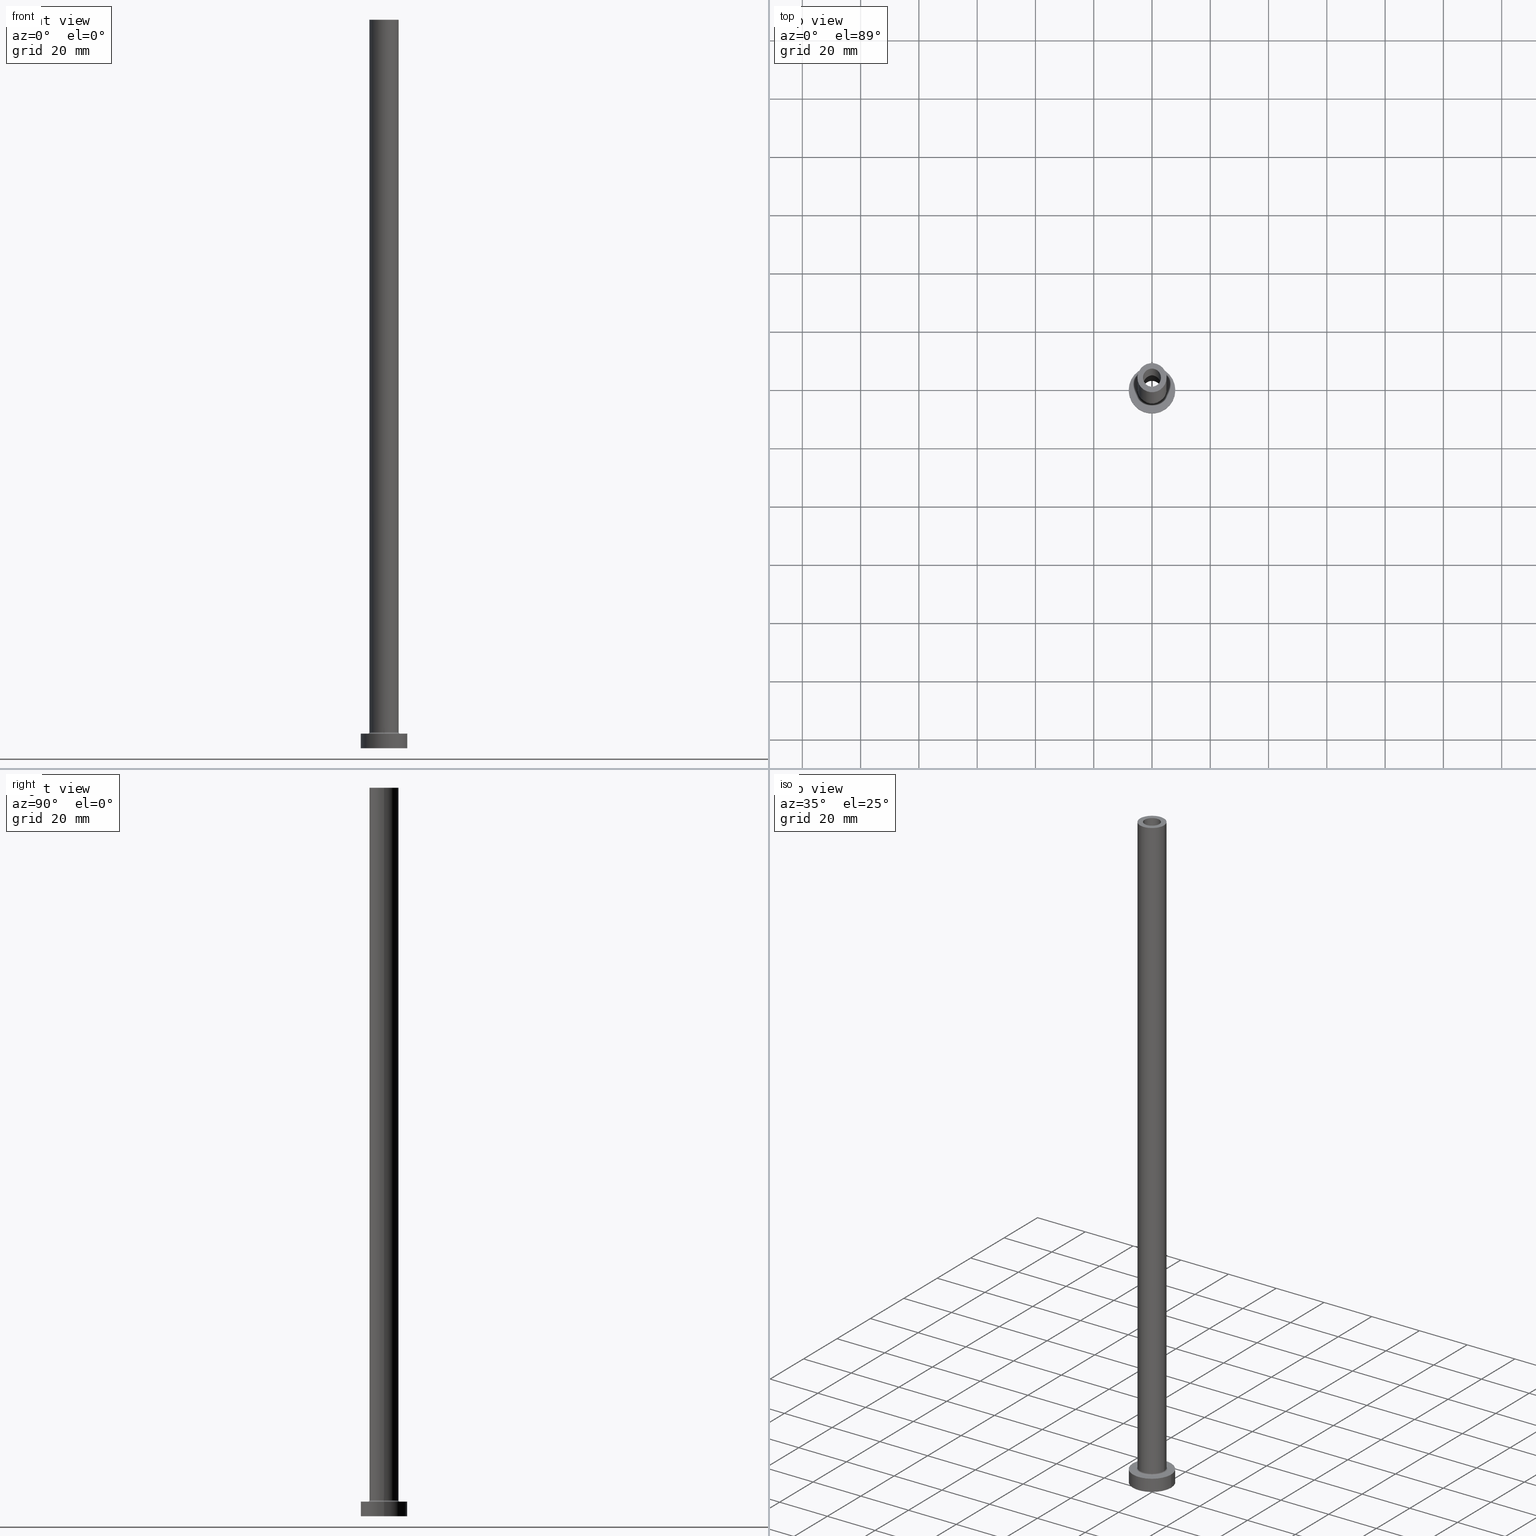
[diagram: canonical four-view strip — front | top / right | iso, engineering-drawing reading convention]
A machine part, canonical four-view strip (front | top / right | iso — engineering-drawing reading convention). The complete STEP part file that produces these views, byte-faithful:
ISO-10303-21;
HEADER;
FILE_DESCRIPTION (( 'STEP AP203' ),
    '1' );
FILE_NAME ('8e76.STEP',
    '2023-02-13T09:11:44',
    ( '' ),
    ( '' ),
    'SwSTEP 2.0',
    'SolidWorks 2019',
    '' );
FILE_SCHEMA (( 'CONFIG_CONTROL_DESIGN' ));
ENDSEC;

DATA;
#1 = ORIENTED_EDGE ( 'NONE', *, *, #379, .T. ) ;
#2 = DIRECTION ( 'NONE',  ( -0.000000000000000000, -0.000000000000000000, -1.000000000000000000 ) ) ;
#3 = ORIENTED_EDGE ( 'NONE', *, *, #379, .F. ) ;
#4 = PERSON_AND_ORGANIZATION ( #59, #201 ) ;
#5 = DIRECTION ( 'NONE',  ( 0.000000000000000000, 0.000000000000000000, 1.000000000000000000 ) ) ;
#6 = EDGE_LOOP ( 'NONE', ( #3, #11, #115, #436 ) ) ;
#7 = CARTESIAN_POINT ( 'NONE',  ( -8.000000000000000000, 0.000000000000000000, 0.000000000000000000 ) ) ;
#8 = DIRECTION ( 'NONE',  ( 1.000000000000000000, 0.000000000000000000, 0.000000000000000000 ) ) ;
#9 = ADVANCED_FACE ( 'NONE', ( #392, #69 ), #26, .T. ) ;
#10 = AXIS2_PLACEMENT_3D ( 'NONE', #29, #331, #294 ) ;
#11 = ORIENTED_EDGE ( 'NONE', *, *, #32, .F. ) ;
#12 = AXIS2_PLACEMENT_3D ( 'NONE', #95, #167, #447 ) ;
#13 = FACE_BOUND ( 'NONE', #308, .T. ) ;
#14 = DIRECTION ( 'NONE',  ( 1.000000000000000000, 0.000000000000000000, -0.000000000000000000 ) ) ;
#15 = CARTESIAN_POINT ( 'NONE',  ( 0.000000000000000000, 0.000000000000000000, 250.0000000000000000 ) ) ;
#16 = COORDINATED_UNIVERSAL_TIME_OFFSET ( 1, 0, .AHEAD. ) ;
#17 = FACE_OUTER_BOUND ( 'NONE', #358, .T. ) ;
#18 = CIRCLE ( 'NONE', #354, 3.250000000000000444 ) ;
#19 = DIRECTION ( 'NONE',  ( 0.000000000000000000, 0.000000000000000000, 1.000000000000000000 ) ) ;
#20 = ORIENTED_EDGE ( 'NONE', *, *, #110, .T. ) ;
#21 = DIRECTION ( 'NONE',  ( 0.000000000000000000, 0.000000000000000000, 1.000000000000000000 ) ) ;
#22 = APPROVAL_ROLE ( '' ) ;
#23 = ADVANCED_FACE ( 'NONE', ( #146 ), #80, .F. ) ;
#24 = AXIS2_PLACEMENT_3D ( 'NONE', #121, #162, #232 ) ;
#25 = CC_DESIGN_DATE_AND_TIME_ASSIGNMENT ( #209, #444, ( #370 ) ) ;
#26 = PLANE ( 'NONE',  #346 ) ;
#27 = ADVANCED_FACE ( 'NONE', ( #403 ), #360, .T. ) ;
#28 = EDGE_CURVE ( 'NONE', #254, #288, #255, .T. ) ;
#29 = CARTESIAN_POINT ( 'NONE',  ( 0.000000000000000000, 0.000000000000000000, 250.0000000000000000 ) ) ;
#30 = ORIENTED_EDGE ( 'NONE', *, *, #238, .T. ) ;
#31 = CARTESIAN_POINT ( 'NONE',  ( -3.100000000000000089, 0.000000000000000000, 250.0000000000000000 ) ) ;
#32 = EDGE_CURVE ( 'NONE', #36, #402, #457, .T. ) ;
#33 = VECTOR ( 'NONE', #300, 1000.000000000000000 ) ;
#34 = CARTESIAN_POINT ( 'NONE',  ( 0.000000000000000000, 0.000000000000000000, 0.000000000000000000 ) ) ;
#35 = AXIS2_PLACEMENT_3D ( 'NONE', #272, #364, #158 ) ;
#36 = VERTEX_POINT ( 'NONE', #432 ) ;
#37 = DIRECTION ( 'NONE',  ( -1.000000000000000000, 0.000000000000000000, 0.000000000000000000 ) ) ;
#38 = EDGE_LOOP ( 'NONE', ( #55, #329 ) ) ;
#39 = CARTESIAN_POINT ( 'NONE',  ( 8.000000000000000000, 9.797174393178825657E-16, 5.000000000000000000 ) ) ;
#40 = PERSON_AND_ORGANIZATION_ROLE ( 'design_owner' ) ;
#41 = CC_DESIGN_PERSON_AND_ORGANIZATION_ASSIGNMENT ( #250, #94, ( #260 ) ) ;
#42 = EDGE_CURVE ( 'NONE', #36, #340, #270, .T. ) ;
#43 = ORIENTED_EDGE ( 'NONE', *, *, #61, .F. ) ;
#44 = PLANE ( 'NONE',  #145 ) ;
#45 = COORDINATED_UNIVERSAL_TIME_OFFSET ( 1, 0, .AHEAD. ) ;
#46 = DIRECTION ( 'NONE',  ( 0.000000000000000000, 0.000000000000000000, -1.000000000000000000 ) ) ;
#47 = AXIS2_PLACEMENT_3D ( 'NONE', #243, #315, #377 ) ;
#48 = ORIENTED_EDGE ( 'NONE', *, *, #267, .T. ) ;
#49 = EDGE_CURVE ( 'NONE', #288, #130, #198, .T. ) ;
#50 = DIRECTION ( 'NONE',  ( 0.000000000000000000, 0.000000000000000000, 1.000000000000000000 ) ) ;
#51 = ORIENTED_EDGE ( 'NONE', *, *, #175, .T. ) ;
#52 = PERSON_AND_ORGANIZATION ( #59, #201 ) ;
#53 = EDGE_CURVE ( 'NONE', #340, #345, #362, .T. ) ;
#54 = CARTESIAN_POINT ( 'NONE',  ( 0.000000000000000000, 0.000000000000000000, 205.0000000000000284 ) ) ;
#55 = ORIENTED_EDGE ( 'NONE', *, *, #175, .F. ) ;
#56 = CARTESIAN_POINT ( 'NONE',  ( 3.100000000000000089, 3.796405077356793932E-16, 205.0000000000000284 ) ) ;
#57 = AXIS2_PLACEMENT_3D ( 'NONE', #83, #5, #77 ) ;
#58 = DIRECTION ( 'NONE',  ( 1.000000000000000000, 0.000000000000000000, 0.000000000000000000 ) ) ;
#59 = PERSON ( 'NEUR�EN�', 'NEUR�EN�', 'NEUR�EN�', ('NEUR�EN�'), ('NEUR�EN�'), ('NEUR�EN�') ) ;
#60 = APPLICATION_CONTEXT ( 'configuration controlled 3d designs of mechanical parts and assemblies' ) ;
#61 = EDGE_CURVE ( 'NONE', #254, #156, #74, .T. ) ;
#62 = PERSON_AND_ORGANIZATION ( #59, #201 ) ;
#63 = EDGE_CURVE ( 'NONE', #160, #189, #18, .T. ) ;
#64 = LINE ( 'NONE', #405, #259 ) ;
#65 = CIRCLE ( 'NONE', #88, 5.500000000000000000 ) ;
#66 = CC_DESIGN_APPROVAL ( #425, ( #290 ) ) ;
#67 = DIRECTION ( 'NONE',  ( 0.000000000000000000, 0.000000000000000000, 1.000000000000000000 ) ) ;
#68 = ADVANCED_FACE ( 'NONE', ( #164 ), #85, .T. ) ;
#69 = FACE_OUTER_BOUND ( 'NONE', #306, .T. ) ;
#70 = ORIENTED_EDGE ( 'NONE', *, *, #357, .T. ) ;
#71 = AXIS2_PLACEMENT_3D ( 'NONE', #169, #50, #349 ) ;
#72 = CARTESIAN_POINT ( 'NONE',  ( -3.100000000000000089, 0.000000000000000000, 205.0000000000000284 ) ) ;
#73 = EDGE_CURVE ( 'NONE', #302, #189, #428, .T. ) ;
#74 = LINE ( 'NONE', #461, #216 ) ;
#75 = ORIENTED_EDGE ( 'NONE', *, *, #421, .F. ) ;
#76 = DIRECTION ( 'NONE',  ( -0.000000000000000000, -0.000000000000000000, -1.000000000000000000 ) ) ;
#77 = DIRECTION ( 'NONE',  ( 1.000000000000000000, 0.000000000000000000, 0.000000000000000000 ) ) ;
#78 = EDGE_LOOP ( 'NONE', ( #383, #431 ) ) ;
#79 = DIRECTION ( 'NONE',  ( -0.000000000000000000, -0.000000000000000000, -1.000000000000000000 ) ) ;
#80 = CYLINDRICAL_SURFACE ( 'NONE', #10, 3.100000000000000089 ) ;
#81 = ORIENTED_EDGE ( 'NONE', *, *, #311, .F. ) ;
#82 = CARTESIAN_POINT ( 'NONE',  ( 0.000000000000000000, 0.000000000000000000, 250.0000000000000000 ) ) ;
#83 = CARTESIAN_POINT ( 'NONE',  ( 0.000000000000000000, 0.000000000000000000, 5.000000000000000000 ) ) ;
#84 = ORIENTED_EDGE ( 'NONE', *, *, #32, .T. ) ;
#85 = CYLINDRICAL_SURFACE ( 'NONE', #284, 8.000000000000000000 ) ;
#86 = ORIENTED_EDGE ( 'NONE', *, *, #251, .T. ) ;
#87 = DIRECTION ( 'NONE',  ( 0.000000000000000000, 0.000000000000000000, -1.000000000000000000 ) ) ;
#88 = AXIS2_PLACEMENT_3D ( 'NONE', #371, #204, #99 ) ;
#89 = APPROVAL_DATE_TIME ( #409, #220 ) ;
#90 = DIRECTION ( 'NONE',  ( 1.000000000000000000, 0.000000000000000000, 0.000000000000000000 ) ) ;
#91 = PERSON_AND_ORGANIZATION_ROLE ( 'classification_officer' ) ;
#92 = EDGE_LOOP ( 'NONE', ( #106, #1, #20, #393 ) ) ;
#93 = DIRECTION ( 'NONE',  ( 1.000000000000000000, 0.000000000000000000, 0.000000000000000000 ) ) ;
#94 = PERSON_AND_ORGANIZATION_ROLE ( 'design_supplier' ) ;
#95 = CARTESIAN_POINT ( 'NONE',  ( 0.000000000000000000, 0.000000000000000000, 5.500000000000005329 ) ) ;
#96 = ORIENTED_EDGE ( 'NONE', *, *, #63, .T. ) ;
#97 = APPROVAL_DATE_TIME ( #391, #287 ) ;
#98 = AXIS2_PLACEMENT_3D ( 'NONE', #54, #279, #14 ) ;
#99 = DIRECTION ( 'NONE',  ( 1.000000000000000000, 0.000000000000000000, 0.000000000000000000 ) ) ;
#100 = EDGE_CURVE ( 'NONE', #262, #160, #114, .T. ) ;
#101 = CARTESIAN_POINT ( 'NONE',  ( 0.000000000000000000, 0.000000000000000000, 205.0000000000000284 ) ) ;
#102 = SHAPE_DEFINITION_REPRESENTATION ( #172, #445 ) ;
#103 = CARTESIAN_POINT ( 'NONE',  ( 0.000000000000000000, 0.000000000000000000, 0.000000000000000000 ) ) ;
#104 = DIRECTION ( 'NONE',  ( 1.000000000000000000, 0.000000000000000000, 0.000000000000000000 ) ) ;
#105 = CIRCLE ( 'NONE', #324, 3.250000000000000444 ) ;
#106 = ORIENTED_EDGE ( 'NONE', *, *, #238, .F. ) ;
#107 = EDGE_LOOP ( 'NONE', ( #226, #422, #426, #203 ) ) ;
#108 = ADVANCED_FACE ( 'NONE', ( #202 ), #339, .F. ) ;
#109 = CIRCLE ( 'NONE', #277, 5.000000000000000000 ) ;
#110 = EDGE_CURVE ( 'NONE', #345, #340, #171, .T. ) ;
#111 = CARTESIAN_POINT ( 'NONE',  ( -3.250000000000000444, 0.000000000000000000, 214.1923881554251352 ) ) ;
#112 = DIRECTION ( 'NONE',  ( 1.000000000000000000, 0.000000000000000000, -0.000000000000000000 ) ) ;
#113 = CALENDAR_DATE ( 2023, 13, 2 ) ;
#114 = LINE ( 'NONE', #366, #184 ) ;
#115 = ORIENTED_EDGE ( 'NONE', *, *, #42, .T. ) ;
#116 = DIRECTION ( 'NONE',  ( 0.000000000000000000, 0.000000000000000000, 1.000000000000000000 ) ) ;
#117 = DIRECTION ( 'NONE',  ( -0.000000000000000000, -0.000000000000000000, -1.000000000000000000 ) ) ;
#118 = ADVANCED_FACE ( 'NONE', ( #155 ), #170, .F. ) ;
#119 = ORIENTED_EDGE ( 'NONE', *, *, #28, .T. ) ;
#120 = FACE_OUTER_BOUND ( 'NONE', #78, .T. ) ;
#121 = CARTESIAN_POINT ( 'NONE',  ( 0.000000000000000000, 0.000000000000000000, 250.0000000000000000 ) ) ;
#122 = VECTOR ( 'NONE', #326, 1000.000000000000000 ) ;
#123 = CARTESIAN_POINT ( 'NONE',  ( 0.000000000000000000, 0.000000000000000000, 250.0000000000000000 ) ) ;
#124 = APPLICATION_PROTOCOL_DEFINITION ( 'international standard', 'config_control_design', 1994, #60 ) ;
#125 = DIRECTION ( 'NONE',  ( -1.000000000000000000, 0.000000000000000000, 0.000000000000000000 ) ) ;
#126 = EDGE_LOOP ( 'NONE', ( #297, #293 ) ) ;
#127 = CARTESIAN_POINT ( 'NONE',  ( 5.500000000000000000, 0.000000000000000000, 5.000000000000002665 ) ) ;
#128 = DIRECTION ( 'NONE',  ( -1.000000000000000000, 1.224646799147351482E-16, 0.000000000000000000 ) ) ;
#129 = EDGE_CURVE ( 'NONE', #288, #254, #285, .T. ) ;
#130 = VERTEX_POINT ( 'NONE', #452 ) ;
#131 = DIRECTION ( 'NONE',  ( 0.000000000000000000, 0.000000000000000000, 1.000000000000000000 ) ) ;
#132 = CIRCLE ( 'NONE', #453, 3.100000000000000089 ) ;
#133 = DATE_AND_TIME ( #312, #381 ) ;
#134 = DIRECTION ( 'NONE',  ( 1.000000000000000000, 0.000000000000000000, 0.000000000000000000 ) ) ;
#135 = EDGE_CURVE ( 'NONE', #189, #160, #105, .T. ) ;
#136 = DIRECTION ( 'NONE',  ( 0.000000000000000000, 0.000000000000000000, 1.000000000000000000 ) ) ;
#137 = EDGE_CURVE ( 'NONE', #292, #281, #390, .T. ) ;
#138 = DIRECTION ( 'NONE',  ( 0.000000000000000000, 0.000000000000000000, -1.000000000000000000 ) ) ;
#139 = CIRCLE ( 'NONE', #394, 8.000000000000000000 ) ;
#140 = AXIS2_PLACEMENT_3D ( 'NONE', #333, #76, #37 ) ;
#141 = APPLICATION_CONTEXT ( 'configuration controlled 3d designs of mechanical parts and assemblies' ) ;
#142 = ORIENTED_EDGE ( 'NONE', *, *, #129, .F. ) ;
#143 = DIRECTION ( 'NONE',  ( 0.000000000000000000, 0.000000000000000000, -1.000000000000000000 ) ) ;
#144 = ORIENTED_EDGE ( 'NONE', *, *, #311, .T. ) ;
#145 = AXIS2_PLACEMENT_3D ( 'NONE', #368, #197, #112 ) ;
#146 = FACE_OUTER_BOUND ( 'NONE', #244, .T. ) ;
#147 = ADVANCED_FACE ( 'NONE', ( #342, #310 ), #450, .F. ) ;
#148 = ORIENTED_EDGE ( 'NONE', *, *, #251, .F. ) ;
#149 = CC_DESIGN_PERSON_AND_ORGANIZATION_ASSIGNMENT ( #415, #177, ( #260 ) ) ;
#150 = DIRECTION ( 'NONE',  ( 0.000000000000000000, 0.000000000000000000, 1.000000000000000000 ) ) ;
#151 = CARTESIAN_POINT ( 'NONE',  ( 3.100000000000000089, 3.796405077356793932E-16, 250.0000000000000000 ) ) ;
#152 = CIRCLE ( 'NONE', #328, 5.500000000000000000 ) ;
#153 = VECTOR ( 'NONE', #79, 1000.000000000000000 ) ;
#154 = CARTESIAN_POINT ( 'NONE',  ( 0.000000000000000000, 0.000000000000000000, 5.500000000000005329 ) ) ;
#155 = FACE_OUTER_BOUND ( 'NONE', #234, .T. ) ;
#156 = VERTEX_POINT ( 'NONE', #283 ) ;
#157 = EDGE_CURVE ( 'NONE', #262, #302, #163, .T. ) ;
#158 = DIRECTION ( 'NONE',  ( 1.000000000000000000, 0.000000000000000000, 0.000000000000000000 ) ) ;
#159 = CARTESIAN_POINT ( 'NONE',  ( -8.000000000000000000, 0.000000000000000000, 5.000000000000000000 ) ) ;
#160 = VERTEX_POINT ( 'NONE', #420 ) ;
#161 = DIRECTION ( 'NONE',  ( 1.000000000000000000, 0.000000000000000000, 0.000000000000000000 ) ) ;
#162 = DIRECTION ( 'NONE',  ( 0.000000000000000000, 0.000000000000000000, -1.000000000000000000 ) ) ;
#163 = CIRCLE ( 'NONE', #419, 3.250000000000000444 ) ;
#164 = FACE_OUTER_BOUND ( 'NONE', #6, .T. ) ;
#165 = MANIFOLD_SOLID_BREP ( 'Odebrat vysunut�m4', #407 ) ;
#166 = ORIENTED_EDGE ( 'NONE', *, *, #61, .T. ) ;
#167 = DIRECTION ( 'NONE',  ( 0.000000000000000000, 0.000000000000000000, 1.000000000000000000 ) ) ;
#168 = ORIENTED_EDGE ( 'NONE', *, *, #28, .F. ) ;
#169 = CARTESIAN_POINT ( 'NONE',  ( 0.000000000000000000, 0.000000000000000000, 250.0000000000000000 ) ) ;
#170 = CYLINDRICAL_SURFACE ( 'NONE', #313, 3.250000000000000444 ) ;
#171 = CIRCLE ( 'NONE', #321, 8.000000000000000000 ) ;
#172 = PRODUCT_DEFINITION_SHAPE ( 'NONE', 'NONE',  #290 ) ;
#173 = DIRECTION ( 'NONE',  ( -1.000000000000000000, 0.000000000000000000, 0.000000000000000000 ) ) ;
#174 = APPLICATION_PROTOCOL_DEFINITION ( 'international standard', 'config_control_design', 1994, #141 ) ;
#175 = EDGE_CURVE ( 'NONE', #439, #389, #399, .T. ) ;
#176 = CYLINDRICAL_SURFACE ( 'NONE', #337, 5.000000000000000000 ) ;
#177 = PERSON_AND_ORGANIZATION_ROLE ( 'creator' ) ;
#178 = TOROIDAL_SURFACE ( 'NONE', #427, 5.500000000000000000, 0.5000000000000000000 ) ;
#179 = ADVANCED_FACE ( 'NONE', ( #17 ), #291, .F. ) ;
#180 = CARTESIAN_POINT ( 'NONE',  ( 3.100000000000000089, 3.796405077356793932E-16, 250.0000000000000000 ) ) ;
#181 = PERSON_AND_ORGANIZATION ( #59, #201 ) ;
#182 = ORIENTED_EDGE ( 'NONE', *, *, #357, .F. ) ;
#183 = DIRECTION ( 'NONE',  ( 1.000000000000000000, 0.000000000000000000, -0.000000000000000000 ) ) ;
#184 = VECTOR ( 'NONE', #46, 1000.000000000000000 ) ;
#185 = ADVANCED_FACE ( 'NONE', ( #280, #207 ), #413, .T. ) ;
#186 = CYLINDRICAL_SURFACE ( 'NONE', #140, 5.000000000000000000 ) ;
#187 = CARTESIAN_POINT ( 'NONE',  ( -3.250000000000000444, 0.000000000000000000, 205.0000000000000284 ) ) ;
#188 = DIRECTION ( 'NONE',  ( 1.000000000000000000, 0.000000000000000000, 0.000000000000000000 ) ) ;
#189 = VERTEX_POINT ( 'NONE', #212 ) ;
#190 = CIRCLE ( 'NONE', #211, 0.5000000000000004441 ) ;
#191 = CARTESIAN_POINT ( 'NONE',  ( 5.000000000000000000, 6.123233995736766282E-16, 250.0000000000000000 ) ) ;
#192 = ADVANCED_FACE ( 'NONE', ( #411 ), #176, .T. ) ;
#193 = CARTESIAN_POINT ( 'NONE',  ( 0.000000000000000000, 0.000000000000000000, 0.000000000000000000 ) ) ;
#194 = CARTESIAN_POINT ( 'NONE',  ( 5.500000000000000000, 0.000000000000000000, 5.500000000000005329 ) ) ;
#195 = DIRECTION ( 'NONE',  ( 0.000000000000000000, 0.000000000000000000, 1.000000000000000000 ) ) ;
#196 = EDGE_LOOP ( 'NONE', ( #70, #352 ) ) ;
#197 = DIRECTION ( 'NONE',  ( 0.000000000000000000, 0.000000000000000000, 1.000000000000000000 ) ) ;
#198 = LINE ( 'NONE', #335, #228 ) ;
#199 = VERTEX_POINT ( 'NONE', #245 ) ;
#200 = AXIS2_PLACEMENT_3D ( 'NONE', #261, #223, #397 ) ;
#201 = ORGANIZATION ( 'NEUR�EN�', 'NEUR�EN�', '' ) ;
#202 = FACE_OUTER_BOUND ( 'NONE', #107, .T. ) ;
#203 = ORIENTED_EDGE ( 'NONE', *, *, #135, .T. ) ;
#204 = DIRECTION ( 'NONE',  ( -0.000000000000000000, -0.000000000000000000, -1.000000000000000000 ) ) ;
#205 = CARTESIAN_POINT ( 'NONE',  ( 0.000000000000000000, 0.000000000000000000, 205.0000000000000284 ) ) ;
#206 = APPROVAL_STATUS ( 'not_yet_approved' ) ;
#207 = FACE_OUTER_BOUND ( 'NONE', #269, .T. ) ;
#208 = MECHANICAL_CONTEXT ( 'NONE', #141, 'mechanical' ) ;
#209 = DATE_AND_TIME ( #113, #266 ) ;
#210 = DIRECTION ( 'NONE',  ( 1.000000000000000000, 0.000000000000000000, 0.000000000000000000 ) ) ;
#211 = AXIS2_PLACEMENT_3D ( 'NONE', #249, #382, #128 ) ;
#212 = CARTESIAN_POINT ( 'NONE',  ( -3.250000000000000444, 0.000000000000000000, 0.000000000000000000 ) ) ;
#213 = DIRECTION ( 'NONE',  ( -1.000000000000000000, 0.000000000000000000, 0.000000000000000000 ) ) ;
#214 = EDGE_LOOP ( 'NONE', ( #81, #219, #373, #148 ) ) ;
#215 = EDGE_CURVE ( 'NONE', #156, #199, #190, .T. ) ;
#216 = VECTOR ( 'NONE', #117, 1000.000000000000000 ) ;
#217 = LINE ( 'NONE', #180, #369 ) ;
#218 = LOCAL_TIME ( 10, 11, 44.00000000000000000, #45 ) ;
#219 = ORIENTED_EDGE ( 'NONE', *, *, #388, .T. ) ;
#220 = APPROVAL ( #449, 'NEUR�EN�' ) ;
#221 = AXIS2_PLACEMENT_3D ( 'NONE', #15, #136, #307 ) ;
#222 = APPROVAL_PERSON_ORGANIZATION ( #52, #425, #343 ) ;
#223 = DIRECTION ( 'NONE',  ( 0.000000000000000000, 0.000000000000000000, -1.000000000000000000 ) ) ;
#224 = DIRECTION ( 'NONE',  ( 0.000000000000000000, -1.000000000000000000, 0.000000000000000000 ) ) ;
#225 = CARTESIAN_POINT ( 'NONE',  ( 0.000000000000000000, 0.000000000000000000, 0.000000000000000000 ) ) ;
#226 = ORIENTED_EDGE ( 'NONE', *, *, #100, .F. ) ;
#227 = DIRECTION ( 'NONE',  ( 0.000000000000000000, 0.000000000000000000, 1.000000000000000000 ) ) ;
#228 = VECTOR ( 'NONE', #298, 1000.000000000000000 ) ;
#229 = CIRCLE ( 'NONE', #437, 3.100000000000000089 ) ;
#230 = EDGE_LOOP ( 'NONE', ( #395, #361, #327, #257 ) ) ;
#231 = FACE_OUTER_BOUND ( 'NONE', #404, .T. ) ;
#232 = DIRECTION ( 'NONE',  ( -1.000000000000000000, 0.000000000000000000, 0.000000000000000000 ) ) ;
#233 = DIRECTION ( 'NONE',  ( -0.000000000000000000, -0.000000000000000000, -1.000000000000000000 ) ) ;
#234 = EDGE_LOOP ( 'NONE', ( #332, #258, #96, #443 ) ) ;
#235 = COORDINATED_UNIVERSAL_TIME_OFFSET ( 1, 0, .AHEAD. ) ;
#236 = CC_DESIGN_PERSON_AND_ORGANIZATION_ASSIGNMENT ( #62, #91, ( #370 ) ) ;
#237 = CARTESIAN_POINT ( 'NONE',  ( 0.000000000000000000, 0.000000000000000000, 5.000000000000000000 ) ) ;
#238 = EDGE_CURVE ( 'NONE', #402, #36, #139, .T. ) ;
#239 = ORIENTED_EDGE ( 'NONE', *, *, #309, .T. ) ;
#240 = CYLINDRICAL_SURFACE ( 'NONE', #24, 3.100000000000000089 ) ;
#241 = DESIGN_CONTEXT ( 'detailed design', #60, 'design' ) ;
#242 = CARTESIAN_POINT ( 'NONE',  ( -5.000000000000000000, 0.000000000000000000, 250.0000000000000000 ) ) ;
#243 = CARTESIAN_POINT ( 'NONE',  ( 0.000000000000000000, 0.000000000000000000, 5.500000000000005329 ) ) ;
#244 = EDGE_LOOP ( 'NONE', ( #51, #144, #455, #398 ) ) ;
#245 = CARTESIAN_POINT ( 'NONE',  ( -5.500000000000000000, 6.735557395310442023E-16, 5.000000000000002665 ) ) ;
#246 = CARTESIAN_POINT ( 'NONE',  ( 0.000000000000000000, 0.000000000000000000, 250.0000000000000000 ) ) ;
#247 = CARTESIAN_POINT ( 'NONE',  ( 0.000000000000000000, 0.000000000000000000, 5.000000000000000000 ) ) ;
#248 = DIRECTION ( 'NONE',  ( 0.000000000000000000, 0.000000000000000000, 1.000000000000000000 ) ) ;
#249 = CARTESIAN_POINT ( 'NONE',  ( -5.500000000000000000, 6.735557395310442023E-16, 5.500000000000005329 ) ) ;
#250 = PERSON_AND_ORGANIZATION ( #59, #201 ) ;
#251 = EDGE_CURVE ( 'NONE', #281, #292, #132, .T. ) ;
#252 = EDGE_CURVE ( 'NONE', #439, #292, #64, .T. ) ;
#253 = DATE_AND_TIME ( #384, #218 ) ;
#254 = VERTEX_POINT ( 'NONE', #242 ) ;
#255 = CIRCLE ( 'NONE', #380, 5.000000000000000000 ) ;
#256 = APPROVAL_STATUS ( 'not_yet_approved' ) ;
#257 = ORIENTED_EDGE ( 'NONE', *, *, #353, .F. ) ;
#258 = ORIENTED_EDGE ( 'NONE', *, *, #100, .T. ) ;
#259 = VECTOR ( 'NONE', #87, 1000.000000000000000 ) ;
#260 = PRODUCT_DEFINITION_FORMATION_WITH_SPECIFIED_SOURCE ( 'LIBOVOLN�', '', #273, .NOT_KNOWN. ) ;
#261 = CARTESIAN_POINT ( 'NONE',  ( 0.000000000000000000, 0.000000000000000000, 214.1923881554251352 ) ) ;
#262 = VERTEX_POINT ( 'NONE', #372 ) ;
#263 = DIRECTION ( 'NONE',  ( 0.000000000000000000, 0.000000000000000000, 1.000000000000000000 ) ) ;
#264 = DIRECTION ( 'NONE',  ( -1.000000000000000000, 0.000000000000000000, 0.000000000000000000 ) ) ;
#265 = EDGE_LOOP ( 'NONE', ( #433, #86 ) ) ;
#266 = LOCAL_TIME ( 10, 11, 44.00000000000000000, #376 ) ;
#267 = EDGE_CURVE ( 'NONE', #156, #130, #459, .T. ) ;
#268 = CARTESIAN_POINT ( 'NONE',  ( 0.000000000000000000, 0.000000000000000000, 5.000000000000000000 ) ) ;
#269 = EDGE_LOOP ( 'NONE', ( #119, #271 ) ) ;
#270 = LINE ( 'NONE', #159, #122 ) ;
#271 = ORIENTED_EDGE ( 'NONE', *, *, #129, .T. ) ;
#272 = CARTESIAN_POINT ( 'NONE',  ( 0.000000000000000000, 0.000000000000000000, 205.0000000000000284 ) ) ;
#273 = PRODUCT ( '8e76', '8e76', '', ( #208 ) ) ;
#274 = DIRECTION ( 'NONE',  ( 0.000000000000000000, 0.000000000000000000, 1.000000000000000000 ) ) ;
#275 = ORIENTED_EDGE ( 'NONE', *, *, #215, .T. ) ;
#276 = CALENDAR_DATE ( 2023, 13, 2 ) ;
#277 = AXIS2_PLACEMENT_3D ( 'NONE', #154, #116, #104 ) ;
#278 = DIRECTION ( 'NONE',  ( 0.000000000000000000, 0.000000000000000000, 1.000000000000000000 ) ) ;
#279 = DIRECTION ( 'NONE',  ( 0.000000000000000000, 0.000000000000000000, 1.000000000000000000 ) ) ;
#280 = FACE_BOUND ( 'NONE', #38, .T. ) ;
#281 = VERTEX_POINT ( 'NONE', #56 ) ;
#282 = CALENDAR_DATE ( 2023, 13, 2 ) ;
#283 = CARTESIAN_POINT ( 'NONE',  ( -5.000000000000000000, 0.000000000000000000, 5.500000000000005329 ) ) ;
#284 = AXIS2_PLACEMENT_3D ( 'NONE', #237, #296, #264 ) ;
#285 = CIRCLE ( 'NONE', #71, 5.000000000000000000 ) ;
#286 = AXIS2_PLACEMENT_3D ( 'NONE', #103, #248, #386 ) ;
#287 = APPROVAL ( #256, 'NEUR�EN�' ) ;
#288 = VERTEX_POINT ( 'NONE', #191 ) ;
#289 = FACE_OUTER_BOUND ( 'NONE', #230, .T. ) ;
#290 = PRODUCT_DEFINITION ( 'NEZN�M�', '', #260, #241 ) ;
#291 = TOROIDAL_SURFACE ( 'NONE', #12, 5.500000000000000000, 0.5000000000000000000 ) ;
#292 = VERTEX_POINT ( 'NONE', #72 ) ;
#293 = ORIENTED_EDGE ( 'NONE', *, *, #157, .F. ) ;
#294 = DIRECTION ( 'NONE',  ( -1.000000000000000000, 0.000000000000000000, 0.000000000000000000 ) ) ;
#295 = CC_DESIGN_APPROVAL ( #220, ( #370 ) ) ;
#296 = DIRECTION ( 'NONE',  ( -0.000000000000000000, -0.000000000000000000, -1.000000000000000000 ) ) ;
#297 = ORIENTED_EDGE ( 'NONE', *, *, #441, .F. ) ;
#298 = DIRECTION ( 'NONE',  ( -0.000000000000000000, -0.000000000000000000, -1.000000000000000000 ) ) ;
#299 = DIRECTION ( 'NONE',  ( 1.000000000000000000, 0.000000000000000000, 0.000000000000000000 ) ) ;
#300 = DIRECTION ( 'NONE',  ( 0.000000000000000000, 0.000000000000000000, -1.000000000000000000 ) ) ;
#301 = CC_DESIGN_PERSON_AND_ORGANIZATION_ASSIGNMENT ( #4, #365, ( #290 ) ) ;
#302 = VERTEX_POINT ( 'NONE', #187 ) ;
#303 = PRODUCT_RELATED_PRODUCT_CATEGORY ( 'detail', '', ( #273 ) ) ;
#304 = AXIS2_PLACEMENT_3D ( 'NONE', #205, #274, #134 ) ;
#305 = CC_DESIGN_SECURITY_CLASSIFICATION ( #370, ( #260 ) ) ;
#306 = EDGE_LOOP ( 'NONE', ( #84, #30 ) ) ;
#307 = DIRECTION ( 'NONE',  ( 1.000000000000000000, 0.000000000000000000, 0.000000000000000000 ) ) ;
#308 = EDGE_LOOP ( 'NONE', ( #367, #406 ) ) ;
#309 = EDGE_CURVE ( 'NONE', #130, #156, #109, .T. ) ;
#310 = FACE_OUTER_BOUND ( 'NONE', #126, .T. ) ;
#311 = EDGE_CURVE ( 'NONE', #389, #281, #217, .T. ) ;
#312 = CALENDAR_DATE ( 2023, 13, 2 ) ;
#313 = AXIS2_PLACEMENT_3D ( 'NONE', #416, #138, #213 ) ;
#314 = CC_DESIGN_APPROVAL ( #287, ( #260 ) ) ;
#315 = DIRECTION ( 'NONE',  ( 0.000000000000000000, 0.000000000000000000, 1.000000000000000000 ) ) ;
#316 = PERSON_AND_ORGANIZATION ( #59, #201 ) ;
#317 = DIRECTION ( 'NONE',  ( -0.000000000000000000, -0.000000000000000000, -1.000000000000000000 ) ) ;
#318 = CARTESIAN_POINT ( 'NONE',  ( 0.000000000000000000, 0.000000000000000000, 205.0000000000000284 ) ) ;
#319 = ORIENTED_EDGE ( 'NONE', *, *, #49, .T. ) ;
#320 = ADVANCED_FACE ( 'NONE', ( #289 ), #178, .F. ) ;
#321 = AXIS2_PLACEMENT_3D ( 'NONE', #225, #150, #356 ) ;
#322 = ORIENTED_EDGE ( 'NONE', *, *, #49, .F. ) ;
#323 = COORDINATED_UNIVERSAL_TIME_OFFSET ( 1, 0, .AHEAD. ) ;
#324 = AXIS2_PLACEMENT_3D ( 'NONE', #375, #317, #93 ) ;
#325 =( LENGTH_UNIT ( ) NAMED_UNIT ( * ) SI_UNIT ( .MILLI., .METRE. ) );
#326 = DIRECTION ( 'NONE',  ( -0.000000000000000000, -0.000000000000000000, -1.000000000000000000 ) ) ;
#327 = ORIENTED_EDGE ( 'NONE', *, *, #421, .T. ) ;
#328 = AXIS2_PLACEMENT_3D ( 'NONE', #247, #385, #299 ) ;
#329 = ORIENTED_EDGE ( 'NONE', *, *, #388, .F. ) ;
#330 = FACE_OUTER_BOUND ( 'NONE', #214, .T. ) ;
#331 = DIRECTION ( 'NONE',  ( 0.000000000000000000, 0.000000000000000000, -1.000000000000000000 ) ) ;
#332 = ORIENTED_EDGE ( 'NONE', *, *, #441, .T. ) ;
#333 = CARTESIAN_POINT ( 'NONE',  ( 0.000000000000000000, 0.000000000000000000, 250.0000000000000000 ) ) ;
#334 = ADVANCED_FACE ( 'NONE', ( #330 ), #240, .F. ) ;
#335 = CARTESIAN_POINT ( 'NONE',  ( 5.000000000000000000, 6.123233995736766282E-16, 250.0000000000000000 ) ) ;
#336 = EDGE_LOOP ( 'NONE', ( #322, #168, #166, #48 ) ) ;
#337 = AXIS2_PLACEMENT_3D ( 'NONE', #246, #442, #173 ) ;
#338 = APPROVAL_PERSON_ORGANIZATION ( #316, #220, #460 ) ;
#339 = CYLINDRICAL_SURFACE ( 'NONE', #200, 3.250000000000000444 ) ;
#340 = VERTEX_POINT ( 'NONE', #7 ) ;
#341 = CARTESIAN_POINT ( 'NONE',  ( 8.000000000000000000, 9.797174393178825657E-16, 0.000000000000000000 ) ) ;
#342 = FACE_BOUND ( 'NONE', #265, .T. ) ;
#343 = APPROVAL_ROLE ( '' ) ;
#344 = CARTESIAN_POINT ( 'NONE',  ( 0.000000000000000000, 0.000000000000000000, 5.000000000000000000 ) ) ;
#345 = VERTEX_POINT ( 'NONE', #341 ) ;
#346 = AXIS2_PLACEMENT_3D ( 'NONE', #351, #67, #183 ) ;
#347 = LOCAL_TIME ( 10, 11, 44.00000000000000000, #235 ) ;
#348 = CARTESIAN_POINT ( 'NONE',  ( 0.000000000000000000, 0.000000000000000000, 250.0000000000000000 ) ) ;
#349 = DIRECTION ( 'NONE',  ( 1.000000000000000000, 0.000000000000000000, 0.000000000000000000 ) ) ;
#350 = AXIS2_PLACEMENT_3D ( 'NONE', #193, #435, #188 ) ;
#351 = CARTESIAN_POINT ( 'NONE',  ( 0.000000000000000000, 0.000000000000000000, 5.000000000000000000 ) ) ;
#352 = ORIENTED_EDGE ( 'NONE', *, *, #353, .T. ) ;
#353 = EDGE_CURVE ( 'NONE', #199, #458, #65, .T. ) ;
#354 = AXIS2_PLACEMENT_3D ( 'NONE', #34, #2, #8 ) ;
#355 = LOCAL_TIME ( 10, 11, 44.00000000000000000, #323 ) ;
#356 = DIRECTION ( 'NONE',  ( 1.000000000000000000, 0.000000000000000000, 0.000000000000000000 ) ) ;
#357 = EDGE_CURVE ( 'NONE', #458, #199, #152, .T. ) ;
#358 = EDGE_LOOP ( 'NONE', ( #363, #275, #182, #75 ) ) ;
#359 = LINE ( 'NONE', #39, #153 ) ;
#360 = CYLINDRICAL_SURFACE ( 'NONE', #448, 8.000000000000000000 ) ;
#361 = ORIENTED_EDGE ( 'NONE', *, *, #309, .F. ) ;
#362 = CIRCLE ( 'NONE', #350, 8.000000000000000000 ) ;
#363 = ORIENTED_EDGE ( 'NONE', *, *, #267, .F. ) ;
#364 = DIRECTION ( 'NONE',  ( 0.000000000000000000, 0.000000000000000000, 1.000000000000000000 ) ) ;
#365 = PERSON_AND_ORGANIZATION_ROLE ( 'creator' ) ;
#366 = CARTESIAN_POINT ( 'NONE',  ( 3.250000000000000444, 3.980102097228898231E-16, 214.1923881554251352 ) ) ;
#367 = ORIENTED_EDGE ( 'NONE', *, *, #135, .F. ) ;
#368 = CARTESIAN_POINT ( 'NONE',  ( 0.000000000000000000, 0.000000000000000000, 0.000000000000000000 ) ) ;
#369 = VECTOR ( 'NONE', #143, 1000.000000000000000 ) ;
#370 = SECURITY_CLASSIFICATION ( '', '', #451 ) ;
#371 = CARTESIAN_POINT ( 'NONE',  ( 0.000000000000000000, 0.000000000000000000, 5.000000000000000000 ) ) ;
#372 = CARTESIAN_POINT ( 'NONE',  ( 3.250000000000000444, 3.980102097228898231E-16, 205.0000000000000284 ) ) ;
#373 = ORIENTED_EDGE ( 'NONE', *, *, #252, .T. ) ;
#374 = PERSON_AND_ORGANIZATION ( #59, #201 ) ;
#375 = CARTESIAN_POINT ( 'NONE',  ( 0.000000000000000000, 0.000000000000000000, 0.000000000000000000 ) ) ;
#376 = COORDINATED_UNIVERSAL_TIME_OFFSET ( 1, 0, .AHEAD. ) ;
#377 = DIRECTION ( 'NONE',  ( 1.000000000000000000, 0.000000000000000000, 0.000000000000000000 ) ) ;
#378 = ADVANCED_FACE ( 'NONE', ( #13, #120 ), #44, .F. ) ;
#379 = EDGE_CURVE ( 'NONE', #402, #345, #359, .T. ) ;
#380 = AXIS2_PLACEMENT_3D ( 'NONE', #123, #195, #438 ) ;
#381 = LOCAL_TIME ( 10, 11, 44.00000000000000000, #16 ) ;
#382 = DIRECTION ( 'NONE',  ( 1.224646799147353207E-16, 1.000000000000000000, -0.000000000000000000 ) ) ;
#383 = ORIENTED_EDGE ( 'NONE', *, *, #53, .F. ) ;
#384 = CALENDAR_DATE ( 2023, 13, 2 ) ;
#385 = DIRECTION ( 'NONE',  ( -0.000000000000000000, -0.000000000000000000, -1.000000000000000000 ) ) ;
#386 = DIRECTION ( 'NONE',  ( 1.000000000000000000, 0.000000000000000000, 0.000000000000000000 ) ) ;
#387 = DIRECTION ( 'NONE',  ( 1.000000000000000000, 0.000000000000000000, -0.000000000000000000 ) ) ;
#388 = EDGE_CURVE ( 'NONE', #389, #439, #229, .T. ) ;
#389 = VERTEX_POINT ( 'NONE', #151 ) ;
#390 = CIRCLE ( 'NONE', #304, 3.100000000000000089 ) ;
#391 = DATE_AND_TIME ( #282, #355 ) ;
#392 = FACE_BOUND ( 'NONE', #196, .T. ) ;
#393 = ORIENTED_EDGE ( 'NONE', *, *, #42, .F. ) ;
#394 = AXIS2_PLACEMENT_3D ( 'NONE', #344, #131, #58 ) ;
#395 = ORIENTED_EDGE ( 'NONE', *, *, #215, .F. ) ;
#396 = CIRCLE ( 'NONE', #429, 0.5000000000000004441 ) ;
#397 = DIRECTION ( 'NONE',  ( -1.000000000000000000, 0.000000000000000000, 0.000000000000000000 ) ) ;
#398 = ORIENTED_EDGE ( 'NONE', *, *, #252, .F. ) ;
#399 = CIRCLE ( 'NONE', #221, 3.100000000000000089 ) ;
#400 = CARTESIAN_POINT ( 'NONE',  ( 8.000000000000000000, 9.797174393178825657E-16, 5.000000000000000000 ) ) ;
#401 = APPROVAL_PERSON_ORGANIZATION ( #181, #287, #22 ) ;
#402 = VERTEX_POINT ( 'NONE', #400 ) ;
#403 = FACE_OUTER_BOUND ( 'NONE', #92, .T. ) ;
#404 = EDGE_LOOP ( 'NONE', ( #142, #319, #239, #43 ) ) ;
#405 = CARTESIAN_POINT ( 'NONE',  ( -3.100000000000000089, 0.000000000000000000, 250.0000000000000000 ) ) ;
#406 = ORIENTED_EDGE ( 'NONE', *, *, #63, .F. ) ;
#407 = CLOSED_SHELL ( 'NONE', ( #23, #118, #179, #417, #27, #68, #9, #378, #192, #185, #320, #108, #147, #334 ) ) ;
#408 = CIRCLE ( 'NONE', #35, 3.250000000000000444 ) ;
#409 = DATE_AND_TIME ( #276, #347 ) ;
#410 = DIRECTION ( 'NONE',  ( 1.000000000000000000, 0.000000000000000000, 0.000000000000000000 ) ) ;
#411 = FACE_OUTER_BOUND ( 'NONE', #336, .T. ) ;
#412 = APPROVAL_DATE_TIME ( #133, #425 ) ;
#413 = PLANE ( 'NONE',  #424 ) ;
#414 = CC_DESIGN_PERSON_AND_ORGANIZATION_ASSIGNMENT ( #374, #40, ( #273 ) ) ;
#415 = PERSON_AND_ORGANIZATION ( #59, #201 ) ;
#416 = CARTESIAN_POINT ( 'NONE',  ( 0.000000000000000000, 0.000000000000000000, 214.1923881554251352 ) ) ;
#417 = ADVANCED_FACE ( 'NONE', ( #231 ), #186, .T. ) ;
#418 =( NAMED_UNIT ( * ) SI_UNIT ( $, .STERADIAN. ) SOLID_ANGLE_UNIT ( ) );
#419 = AXIS2_PLACEMENT_3D ( 'NONE', #101, #21, #210 ) ;
#420 = CARTESIAN_POINT ( 'NONE',  ( 3.250000000000000444, 3.980102097228898231E-16, 0.000000000000000000 ) ) ;
#421 = EDGE_CURVE ( 'NONE', #130, #458, #396, .T. ) ;
#422 = ORIENTED_EDGE ( 'NONE', *, *, #157, .T. ) ;
#423 = DATE_TIME_ROLE ( 'creation_date' ) ;
#424 = AXIS2_PLACEMENT_3D ( 'NONE', #348, #19, #387 ) ;
#425 = APPROVAL ( #206, 'NEUR�EN�' ) ;
#426 = ORIENTED_EDGE ( 'NONE', *, *, #73, .T. ) ;
#427 = AXIS2_PLACEMENT_3D ( 'NONE', #434, #263, #410 ) ;
#428 = LINE ( 'NONE', #111, #33 ) ;
#429 = AXIS2_PLACEMENT_3D ( 'NONE', #194, #224, #440 ) ;
#430 =( NAMED_UNIT ( * ) PLANE_ANGLE_UNIT ( ) SI_UNIT ( $, .RADIAN. ) );
#431 = ORIENTED_EDGE ( 'NONE', *, *, #110, .F. ) ;
#432 = CARTESIAN_POINT ( 'NONE',  ( -8.000000000000000000, 0.000000000000000000, 5.000000000000000000 ) ) ;
#433 = ORIENTED_EDGE ( 'NONE', *, *, #137, .T. ) ;
#434 = CARTESIAN_POINT ( 'NONE',  ( 0.000000000000000000, 0.000000000000000000, 5.500000000000005329 ) ) ;
#435 = DIRECTION ( 'NONE',  ( 0.000000000000000000, 0.000000000000000000, 1.000000000000000000 ) ) ;
#436 = ORIENTED_EDGE ( 'NONE', *, *, #53, .T. ) ;
#437 = AXIS2_PLACEMENT_3D ( 'NONE', #82, #227, #161 ) ;
#438 = DIRECTION ( 'NONE',  ( 1.000000000000000000, 0.000000000000000000, 0.000000000000000000 ) ) ;
#439 = VERTEX_POINT ( 'NONE', #31 ) ;
#440 = DIRECTION ( 'NONE',  ( 0.000000000000000000, 0.000000000000000000, -1.000000000000000000 ) ) ;
#441 = EDGE_CURVE ( 'NONE', #302, #262, #408, .T. ) ;
#442 = DIRECTION ( 'NONE',  ( -0.000000000000000000, -0.000000000000000000, -1.000000000000000000 ) ) ;
#443 = ORIENTED_EDGE ( 'NONE', *, *, #73, .F. ) ;
#444 = DATE_TIME_ROLE ( 'classification_date' ) ;
#445 = ADVANCED_BREP_SHAPE_REPRESENTATION ( '8e76', ( #165, #286 ), #454 ) ;
#446 = UNCERTAINTY_MEASURE_WITH_UNIT (LENGTH_MEASURE( 1.000000000000000082E-05 ), #325, 'distance_accuracy_value', 'NONE');
#447 = DIRECTION ( 'NONE',  ( 1.000000000000000000, 0.000000000000000000, 0.000000000000000000 ) ) ;
#448 = AXIS2_PLACEMENT_3D ( 'NONE', #268, #233, #125 ) ;
#449 = APPROVAL_STATUS ( 'not_yet_approved' ) ;
#450 = PLANE ( 'NONE',  #98 ) ;
#451 = SECURITY_CLASSIFICATION_LEVEL ( 'unclassified' ) ;
#452 = CARTESIAN_POINT ( 'NONE',  ( 5.000000000000000000, 6.123233995736766282E-16, 5.500000000000005329 ) ) ;
#453 = AXIS2_PLACEMENT_3D ( 'NONE', #318, #278, #90 ) ;
#454 =( GEOMETRIC_REPRESENTATION_CONTEXT ( 3 ) GLOBAL_UNCERTAINTY_ASSIGNED_CONTEXT ( ( #446 ) ) GLOBAL_UNIT_ASSIGNED_CONTEXT ( ( #325, #430, #418 ) ) REPRESENTATION_CONTEXT ( 'NONE', 'WORKASPACE' ) );
#455 = ORIENTED_EDGE ( 'NONE', *, *, #137, .F. ) ;
#456 = CC_DESIGN_DATE_AND_TIME_ASSIGNMENT ( #253, #423, ( #290 ) ) ;
#457 = CIRCLE ( 'NONE', #57, 8.000000000000000000 ) ;
#458 = VERTEX_POINT ( 'NONE', #127 ) ;
#459 = CIRCLE ( 'NONE', #47, 5.000000000000000000 ) ;
#460 = APPROVAL_ROLE ( '' ) ;
#461 = CARTESIAN_POINT ( 'NONE',  ( -5.000000000000000000, 0.000000000000000000, 250.0000000000000000 ) ) ;
ENDSEC;
END-ISO-10303-21;
